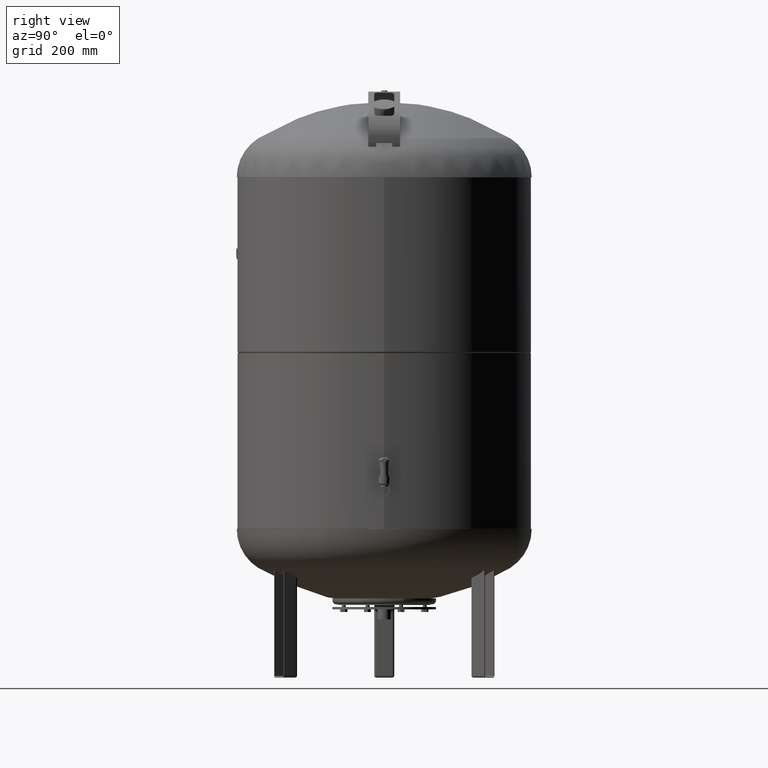
[diagram: clean part render]
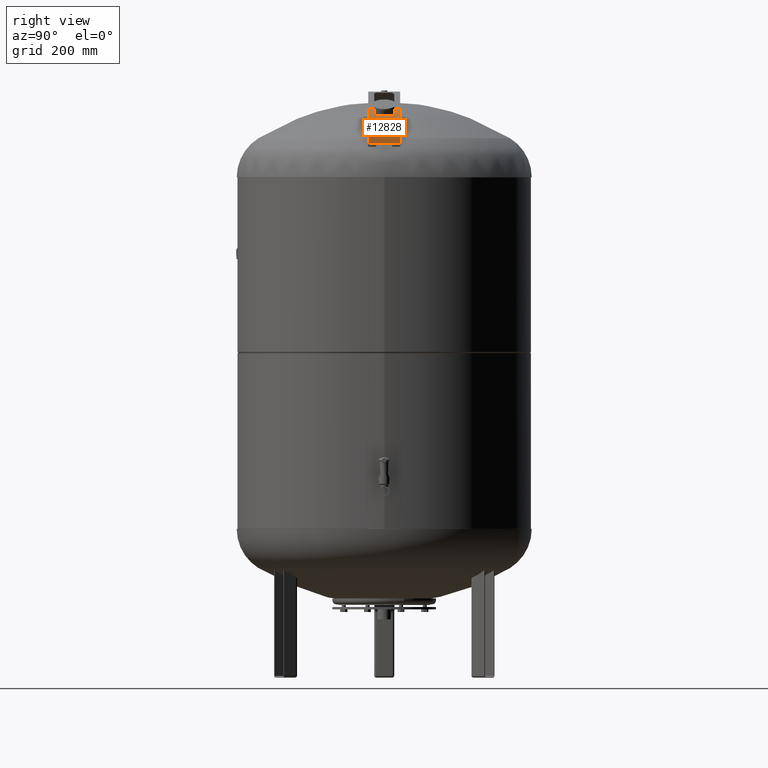
[diagram: same view with one face highlighted and labeled with its STEP entity id]
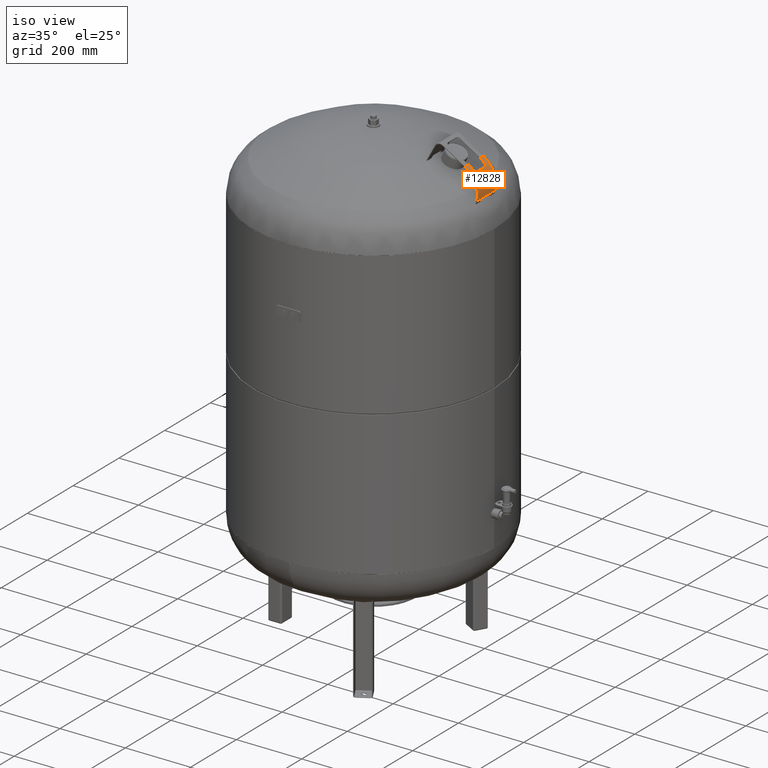
[diagram: same view with one face highlighted and labeled with its STEP entity id]
A machine part, right view. The second image highlights one B-rep face of the part: STEP entity #12828.
A second angle (iso view) of the same face is appended — the face is thin or edge-on in the first view.
In plain terms, the highlighted cylindrical surface (edge-blend (fillet) strip) has radius 79 mm, axis along (0, 1, -0).
Its self-contained STEP definition (entity closure, byte-faithful):
#12136=CARTESIAN_POINT('',(344.399983324674680,19.999999999999996,1341.331354597119800));
#12137=VERTEX_POINT('',#12136);
#12144=CARTESIAN_POINT('',(344.399983324674680,-20.000000000000004,1341.331354597119800));
#12145=VERTEX_POINT('',#12144);
#12146=CARTESIAN_POINT('',(344.399983324674680,-20.000000000000004,1341.331354597119800));
#12147=DIRECTION('',(0.0,1.0,0.0));
#12148=VECTOR('',#12147,40.0);
#12149=LINE('',#12146,#12148);
#12150=EDGE_CURVE('',#12145,#12137,#12149,.T.);
#12356=CARTESIAN_POINT('',(322.718351060672600,-24.999999999999968,1415.410886421644400));
#12357=VERTEX_POINT('',#12356);
#12364=CARTESIAN_POINT('',(328.210354988824520,-16.999999999999996,1409.441462379901600));
#12365=VERTEX_POINT('',#12364);
#12366=CARTESIAN_POINT('',(328.210354988824460,-16.999999999999996,1409.441462379901600));
#12367=CARTESIAN_POINT('',(328.210389454381980,-18.001098037693389,1409.441420824602100));
#12368=CARTESIAN_POINT('',(328.089131427336500,-18.994389289908039,1409.588635559881400));
#12369=CARTESIAN_POINT('',(327.613471555864920,-20.846478049911692,1410.153895491627100));
#12370=CARTESIAN_POINT('',(327.267286578948980,-21.688261161398419,1410.561773940064100));
#12371=CARTESIAN_POINT('',(326.366648548400920,-23.154927435061733,1411.589724544634200));
#12372=CARTESIAN_POINT('',(325.814930284983800,-23.760069219120268,1412.205338818120700));
#12373=CARTESIAN_POINT('',(324.813162786162200,-24.462487950084522,1413.280007488521100));
#12374=CARTESIAN_POINT('',(324.412714062292370,-24.663795012076207,1413.700981232894900));
#12375=CARTESIAN_POINT('',(323.580938101392230,-24.932595877861083,1414.554965014562200));
#12376=CARTESIAN_POINT('',(323.152504516794350,-25.000029814050265,1414.985100976371300));
#12377=CARTESIAN_POINT('',(322.718351060672600,-24.999999999999968,1415.410886421644400));
#12378=B_SPLINE_CURVE_WITH_KNOTS('',3,(#12366,#12367,#12368,#12369,#12370,#12371,#12372,#12373,#12374,#12375,#12376,#12377),.UNSPECIFIED.,.F.,.U.,(4,2,2,2,2,4),(0.0,0.300329411744744,0.596044484812661,0.899555431535718,1.082712991981320,1.264749568333981),.UNSPECIFIED.);
#12379=EDGE_CURVE('',#12365,#12357,#12378,.T.);
#12404=CARTESIAN_POINT('',(328.210354988824460,16.999999999999996,1409.441462379901600));
#12405=VERTEX_POINT('',#12404);
#12406=CARTESIAN_POINT('',(328.210354988824460,16.999999999999996,1409.441462379901600));
#12407=DIRECTION('',(0.0,-1.0,0.0));
#12408=VECTOR('',#12407,33.999999999999993);
#12409=LINE('',#12406,#12408);
#12410=EDGE_CURVE('',#12405,#12365,#12409,.T.);
#12615=CARTESIAN_POINT('',(322.718351060672600,25.000000000000004,1415.410886421644400));
#12616=VERTEX_POINT('',#12615);
#12617=CARTESIAN_POINT('',(322.718351060672600,24.999999999999961,1415.410886421644400));
#12618=CARTESIAN_POINT('',(323.477664617881540,25.000052143342938,1414.666208113780400));
#12619=CARTESIAN_POINT('',(324.217064624693190,24.793327339327689,1413.909800333651200));
#12620=CARTESIAN_POINT('',(325.581560184484150,23.980301755713210,1412.462019324904100));
#12621=CARTESIAN_POINT('',(326.192578993371910,23.375306670411867,1411.785277107278500));
#12622=CARTESIAN_POINT('',(327.164540210636120,21.900263560729528,1410.681266369916100));
#12623=CARTESIAN_POINT('',(327.532777581377270,21.067202024343121,1410.248978407555300));
#12624=CARTESIAN_POINT('',(327.926460010023730,19.662136493641540,1409.782251717508200));
#12625=CARTESIAN_POINT('',(328.030582493779550,19.154013798091672,1409.657551947630100));
#12626=CARTESIAN_POINT('',(328.173910632003810,18.095566499509594,1409.485499476689000));
#12627=CARTESIAN_POINT('',(328.210373857411700,17.548063254248103,1409.441439629949400));
#12628=CARTESIAN_POINT('',(328.210354988824460,16.999999999999996,1409.441462379901600));
#12629=B_SPLINE_CURVE_WITH_KNOTS('',3,(#12617,#12618,#12619,#12620,#12621,#12622,#12623,#12624,#12625,#12626,#12627,#12628),.UNSPECIFIED.,.F.,.U.,(4,2,2,2,2,4),(0.0,0.319059959376750,0.643429384093297,0.942865666803827,1.102285567286538,1.266952028297452),.UNSPECIFIED.);
#12630=EDGE_CURVE('',#12616,#12405,#12629,.T.);
#12735=CARTESIAN_POINT('',(267.403118299835110,-3.216717E-015,1359.008536961587700));
#12736=DIRECTION('',(1.988979E-017,1.0,-1.204569E-017));
#12737=DIRECTION('',(0.518027009373132,1.540744E-033,0.855364260160506));
#12738=AXIS2_PLACEMENT_3D('',#12735,#12736,#12737);
#12739=CYLINDRICAL_SURFACE('',#12738,79.0);
#12740=CARTESIAN_POINT('',(308.327252040312540,24.999999999999996,1426.582313514267500));
#12741=VERTEX_POINT('',#12740);
#12742=CARTESIAN_POINT('',(267.403118299835110,24.999999999999996,1359.008536961587700));
#12743=DIRECTION('',(-7.981470E-034,1.0,-1.317897E-033));
#12744=DIRECTION('',(0.518027009373132,1.540744E-033,0.855364260160506));
#12745=AXIS2_PLACEMENT_3D('',#12742,#12743,#12744);
#12746=CIRCLE('',#12745,79.0);
#12747=EDGE_CURVE('',#12741,#12616,#12746,.T.);
#12748=ORIENTED_EDGE('',*,*,#12747,.T.);
#12749=ORIENTED_EDGE('',*,*,#12630,.T.);
#12750=ORIENTED_EDGE('',*,*,#12410,.T.);
#12751=ORIENTED_EDGE('',*,*,#12379,.T.);
#12752=CARTESIAN_POINT('',(308.327252040312540,-25.000000000000004,1426.582313514267500));
#12753=VERTEX_POINT('',#12752);
#12754=CARTESIAN_POINT('',(267.403118299835110,-25.000000000000004,1359.008536961587700));
#12755=DIRECTION('',(7.981470E-034,-1.0,1.317897E-033));
#12756=DIRECTION('',(0.518027009373132,1.540744E-033,0.855364260160506));
#12757=AXIS2_PLACEMENT_3D('',#12754,#12755,#12756);
#12758=CIRCLE('',#12757,79.0);
#12759=EDGE_CURVE('',#12357,#12753,#12758,.T.);
#12760=ORIENTED_EDGE('',*,*,#12759,.T.);
#12761=CARTESIAN_POINT('',(308.327252040312540,-40.0,1426.582313514267500));
#12762=VERTEX_POINT('',#12761);
#12763=CARTESIAN_POINT('',(308.327252040312540,-40.0,1426.582313514267500));
#12764=DIRECTION('',(0.0,1.0,0.0));
#12765=VECTOR('',#12764,14.999999999999996);
#12766=LINE('',#12763,#12765);
#12767=EDGE_CURVE('',#12762,#12753,#12766,.T.);
#12768=ORIENTED_EDGE('',*,*,#12767,.F.);
#12769=CARTESIAN_POINT('',(344.315851626814830,-40.000000000000007,1340.968818222845600));
#12770=VERTEX_POINT('',#12769);
#12771=CARTESIAN_POINT('',(267.403118299835110,-40.0,1359.008536961587700));
#12772=DIRECTION('',(-7.981470E-034,1.0,-1.317897E-033));
#12773=DIRECTION('',(0.518027009373132,1.540744E-033,0.855364260160506));
#12774=AXIS2_PLACEMENT_3D('',#12771,#12772,#12773);
#12775=CIRCLE('',#12774,79.0);
#12776=EDGE_CURVE('',#12762,#12770,#12775,.T.);
#12777=ORIENTED_EDGE('',*,*,#12776,.T.);
#12778=CARTESIAN_POINT('',(344.315851626814830,-20.000000000000004,1340.968818222845600));
#12779=VERTEX_POINT('',#12778);
#12780=CARTESIAN_POINT('',(344.315851626814830,-20.000000000000004,1340.968818222845600));
#12781=DIRECTION('',(0.0,-1.0,0.0));
#12782=VECTOR('',#12781,20.000000000000004);
#12783=LINE('',#12780,#12782);
#12784=EDGE_CURVE('',#12779,#12770,#12783,.T.);
#12785=ORIENTED_EDGE('',*,*,#12784,.F.);
#12786=CARTESIAN_POINT('',(267.403118299835110,-20.000000000000004,1359.008536961587700));
#12787=DIRECTION('',(7.981470E-034,-1.0,1.317897E-033));
#12788=DIRECTION('',(0.518027009373132,1.540744E-033,0.855364260160506));
#12789=AXIS2_PLACEMENT_3D('',#12786,#12787,#12788);
#12790=CIRCLE('',#12789,79.0);
#12791=EDGE_CURVE('',#12779,#12145,#12790,.T.);
#12792=ORIENTED_EDGE('',*,*,#12791,.T.);
#12793=ORIENTED_EDGE('',*,*,#12150,.T.);
#12794=CARTESIAN_POINT('',(344.315851626814830,19.999999999999996,1340.968818222845600));
#12795=VERTEX_POINT('',#12794);
#12796=CARTESIAN_POINT('',(267.403118299835110,20.000000000000004,1359.008536961587700));
#12797=DIRECTION('',(-7.981470E-034,1.0,-1.317897E-033));
#12798=DIRECTION('',(0.518027009373132,1.540744E-033,0.855364260160506));
#12799=AXIS2_PLACEMENT_3D('',#12796,#12797,#12798);
#12800=CIRCLE('',#12799,79.0);
#12801=EDGE_CURVE('',#12137,#12795,#12800,.T.);
#12802=ORIENTED_EDGE('',*,*,#12801,.T.);
#12803=CARTESIAN_POINT('',(344.315851626814830,39.999999999999993,1340.968818222845600));
#12804=VERTEX_POINT('',#12803);
#12805=CARTESIAN_POINT('',(344.315851626814830,39.999999999999993,1340.968818222845600));
#12806=DIRECTION('',(0.0,-1.0,0.0));
#12807=VECTOR('',#12806,19.999999999999996);
#12808=LINE('',#12805,#12807);
#12809=EDGE_CURVE('',#12804,#12795,#12808,.T.);
#12810=ORIENTED_EDGE('',*,*,#12809,.F.);
#12811=CARTESIAN_POINT('',(308.327252040312540,39.999999999999993,1426.582313514267500));
#12812=VERTEX_POINT('',#12811);
#12813=CARTESIAN_POINT('',(267.403118299835110,39.999999999999986,1359.008536961587700));
#12814=DIRECTION('',(7.981470E-034,-1.0,1.317897E-033));
#12815=DIRECTION('',(0.518027009373132,1.540744E-033,0.855364260160506));
#12816=AXIS2_PLACEMENT_3D('',#12813,#12814,#12815);
#12817=CIRCLE('',#12816,79.0);
#12818=EDGE_CURVE('',#12804,#12812,#12817,.T.);
#12819=ORIENTED_EDGE('',*,*,#12818,.T.);
#12820=CARTESIAN_POINT('',(308.327252040312540,24.999999999999996,1426.582313514267500));
#12821=DIRECTION('',(0.0,1.0,0.0));
#12822=VECTOR('',#12821,14.999999999999996);
#12823=LINE('',#12820,#12822);
#12824=EDGE_CURVE('',#12741,#12812,#12823,.T.);
#12825=ORIENTED_EDGE('',*,*,#12824,.F.);
#12826=EDGE_LOOP('',(#12748,#12749,#12750,#12751,#12760,#12768,#12777,#12785,#12792,#12793,#12802,#12810,#12819,#12825));
#12827=FACE_OUTER_BOUND('',#12826,.T.);
#12828=ADVANCED_FACE('',(#12827),#12739,.T.);